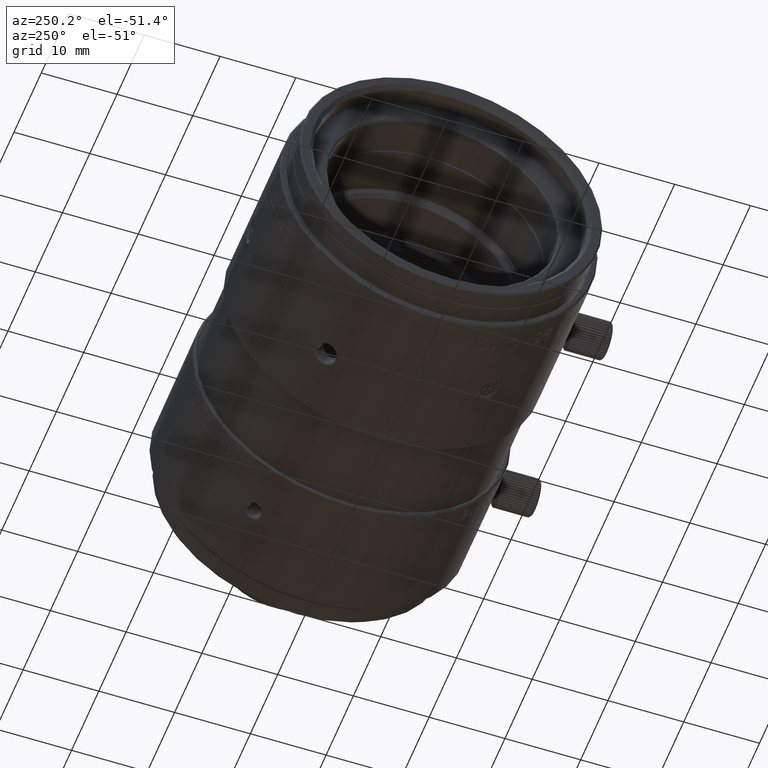
[diagram: clean part render]
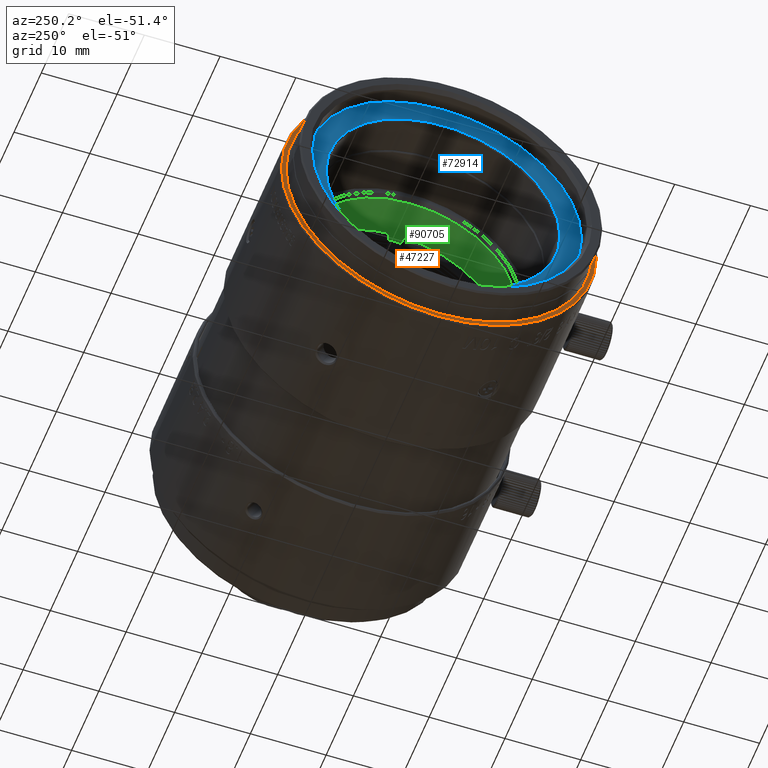
[diagram: same view with three faces highlighted in distinct colors, each labeled with its STEP entity id]
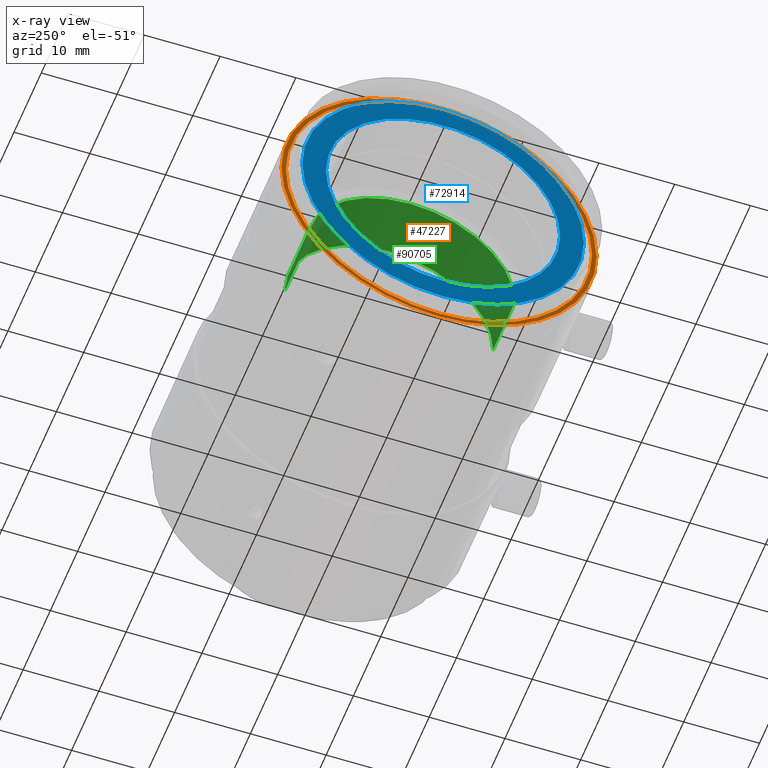
[diagram: x-ray of the same camera — body ghosted, the three highlighted faces saturated]
A machine part, auxiliary view with three faces highlighted in distinct colors.
The next image is the same camera in x-ray (body ghosted, the three faces saturated) — at least one of them is partly hidden behind the body in this view.
Their STEP definitions:

[orange] entity #47227 — the highlighted planar face has unit normal (-1, 0, 0).
#1217 = ORIENTED_EDGE ( 'NONE', *, *, #12666, .F. ) ;
#3645 = AXIS2_PLACEMENT_3D ( 'NONE', #37878, #85990, #16569 ) ;
#4309 = DIRECTION ( 'NONE',  ( 0.000000000000000000, 0.000000000000000000, -1.000000000000000000 ) ) ;
#5336 = AXIS2_PLACEMENT_3D ( 'NONE', #123563, #13353, #44048 ) ;
#7218 = CARTESIAN_POINT ( 'NONE',  ( -64.35099999999999909, -20.80000000000000071, 0.000000000000000000 ) ) ;
#7290 = EDGE_CURVE ( 'NONE', #39368, #22080, #118770, .T. ) ;
#12652 = DIRECTION ( 'NONE',  ( 0.000000000000000000, 0.000000000000000000, 1.000000000000000000 ) ) ;
#12666 = EDGE_CURVE ( 'NONE', #29081, #39368, #75760, .T. ) ;
#13353 = DIRECTION ( 'NONE',  ( 1.000000000000000000, 0.000000000000000000, 0.000000000000000000 ) ) ;
#14923 = ORIENTED_EDGE ( 'NONE', *, *, #113182, .F. ) ;
#16569 = DIRECTION ( 'NONE',  ( 0.000000000000000000, -1.000000000000000000, 0.000000000000000000 ) ) ;
#17142 = CARTESIAN_POINT ( 'NONE',  ( -64.35099999999999909, -20.19999999999999929, 0.000000000000000000 ) ) ;
#19173 = CARTESIAN_POINT ( 'NONE',  ( -64.35099999999999909, 0.000000000000000000, -20.80000000000021743 ) ) ;
#22080 = VERTEX_POINT ( 'NONE', #48786 ) ;
#22798 = AXIS2_PLACEMENT_3D ( 'NONE', #78585, #77939, #107383 ) ;
#22902 = AXIS2_PLACEMENT_3D ( 'NONE', #33322, #44659, #12652 ) ;
#24888 = CIRCLE ( 'NONE', #3645, 20.19999999999999929 ) ;
#25274 = FACE_OUTER_BOUND ( 'NONE', #42019, .T. ) ;
#29081 = VERTEX_POINT ( 'NONE', #7218 ) ;
#29148 = CIRCLE ( 'NONE', #22798, 20.19999999999999929 ) ;
#31832 = AXIS2_PLACEMENT_3D ( 'NONE', #70491, #111254, #114600 ) ;
#33322 = CARTESIAN_POINT ( 'NONE',  ( -64.35099999999999909, 0.000000000000000000, 0.000000000000000000 ) ) ;
#37878 = CARTESIAN_POINT ( 'NONE',  ( -64.35099999999999909, -1.429275949255999940E-12, 0.000000000000000000 ) ) ;
#39368 = VERTEX_POINT ( 'NONE', #19173 ) ;
#42019 = EDGE_LOOP ( 'NONE', ( #131085, #92817, #1217 ) ) ;
#44048 = DIRECTION ( 'NONE',  ( 0.000000000000000000, 0.000000000000000000, -1.000000000000000000 ) ) ;
#44659 = DIRECTION ( 'NONE',  ( -1.000000000000000000, 0.000000000000000000, 0.000000000000000000 ) ) ;
#45179 = CARTESIAN_POINT ( 'NONE',  ( -64.35099999999999909, -1.429275949255999940E-12, -20.19999999999959073 ) ) ;
#46946 = AXIS2_PLACEMENT_3D ( 'NONE', #72752, #54059, #74102 ) ;
#47227 = ADVANCED_FACE ( 'NONE', ( #25274, #84064 ), #94768, .T. ) ;
#48364 = AXIS2_PLACEMENT_3D ( 'NONE', #114546, #95784, #4309 ) ;
#48786 = CARTESIAN_POINT ( 'NONE',  ( -64.35099999999999909, 20.80000000000000071, 0.000000000000000000 ) ) ;
#50894 = ORIENTED_EDGE ( 'NONE', *, *, #113171, .F. ) ;
#54059 = DIRECTION ( 'NONE',  ( 1.000000000000000000, 0.000000000000000000, 0.000000000000000000 ) ) ;
#66417 = EDGE_CURVE ( 'NONE', #105188, #102069, #89410, .T. ) ;
#68865 = VERTEX_POINT ( 'NONE', #83942 ) ;
#70491 = CARTESIAN_POINT ( 'NONE',  ( -64.35099999999999909, -1.429275949255999940E-12, 4.043144115267999903E-13 ) ) ;
#72752 = CARTESIAN_POINT ( 'NONE',  ( -64.35099999999999909, 0.000000000000000000, 0.000000000000000000 ) ) ;
#74102 = DIRECTION ( 'NONE',  ( 0.000000000000000000, 0.000000000000000000, 1.000000000000000000 ) ) ;
#75760 = CIRCLE ( 'NONE', #5336, 20.80000000000000071 ) ;
#77939 = DIRECTION ( 'NONE',  ( -1.000000000000000000, 0.000000000000000000, 0.000000000000000000 ) ) ;
#78585 = CARTESIAN_POINT ( 'NONE',  ( -64.35099999999999909, -1.429275949255999940E-12, 4.043144115267999903E-13 ) ) ;
#83942 = CARTESIAN_POINT ( 'NONE',  ( -64.35099999999999909, 20.19999999999999929, 5.151339402132000470E-10 ) ) ;
#84064 = FACE_BOUND ( 'NONE', #122518, .T. ) ;
#85990 = DIRECTION ( 'NONE',  ( -1.000000000000000000, 0.000000000000000000, 0.000000000000000000 ) ) ;
#89410 = CIRCLE ( 'NONE', #31832, 20.19999999999999929 ) ;
#92817 = ORIENTED_EDGE ( 'NONE', *, *, #7290, .F. ) ;
#94768 = PLANE ( 'NONE',  #22902 ) ;
#95784 = DIRECTION ( 'NONE',  ( 1.000000000000000000, 0.000000000000000000, 0.000000000000000000 ) ) ;
#96197 = EDGE_CURVE ( 'NONE', #22080, #29081, #102334, .T. ) ;
#102069 = VERTEX_POINT ( 'NONE', #17142 ) ;
#102334 = CIRCLE ( 'NONE', #46946, 20.80000000000000071 ) ;
#105188 = VERTEX_POINT ( 'NONE', #45179 ) ;
#107383 = DIRECTION ( 'NONE',  ( 0.000000000000000000, 1.000000000000000000, -1.995433222849000087E-14 ) ) ;
#111254 = DIRECTION ( 'NONE',  ( -1.000000000000000000, 0.000000000000000000, 0.000000000000000000 ) ) ;
#113171 = EDGE_CURVE ( 'NONE', #102069, #68865, #24888, .T. ) ;
#113182 = EDGE_CURVE ( 'NONE', #68865, #105188, #29148, .T. ) ;
#114546 = CARTESIAN_POINT ( 'NONE',  ( -64.35099999999999909, 0.000000000000000000, -2.174825562225000157E-13 ) ) ;
#114600 = DIRECTION ( 'NONE',  ( 0.000000000000000000, 1.000000000000000000, -1.995433222849000087E-14 ) ) ;
#118770 = CIRCLE ( 'NONE', #48364, 20.80000000000000071 ) ;
#122518 = EDGE_LOOP ( 'NONE', ( #14923, #50894, #129840 ) ) ;
#123563 = CARTESIAN_POINT ( 'NONE',  ( -64.35099999999999909, 0.000000000000000000, -2.174825562225000157E-13 ) ) ;
#129840 = ORIENTED_EDGE ( 'NONE', *, *, #66417, .F. ) ;
#131085 = ORIENTED_EDGE ( 'NONE', *, *, #96197, .F. ) ;

[blue] entity #72914 — the highlighted planar face has unit normal (1, 0, 0).
#1939 = ORIENTED_EDGE ( 'NONE', *, *, #54743, .F. ) ;
#3024 = DIRECTION ( 'NONE',  ( 0.000000000000000000, 1.000000000000000000, -1.235711021613000059E-13 ) ) ;
#4971 = DIRECTION ( 'NONE',  ( 1.000000000000000000, 0.000000000000000000, 0.000000000000000000 ) ) ;
#5054 = DIRECTION ( 'NONE',  ( 1.000000000000000000, 0.000000000000000000, 0.000000000000000000 ) ) ;
#5128 = DIRECTION ( 'NONE',  ( 0.000000000000000000, -1.000000000000000000, 0.000000000000000000 ) ) ;
#6620 = VERTEX_POINT ( 'NONE', #22176 ) ;
#8041 = CARTESIAN_POINT ( 'NONE',  ( -60.65099999999999625, 18.59999999999999787, 0.000000000000000000 ) ) ;
#14053 = AXIS2_PLACEMENT_3D ( 'NONE', #127853, #4971, #64412 ) ;
#14917 = VERTEX_POINT ( 'NONE', #26134 ) ;
#19260 = CARTESIAN_POINT ( 'NONE',  ( -60.65099999999999625, 0.000000000000000000, 0.000000000000000000 ) ) ;
#22176 = CARTESIAN_POINT ( 'NONE',  ( -60.65099999999999625, -15.45000000000000107, 1.909173528393000005E-12 ) ) ;
#23695 = DIRECTION ( 'NONE',  ( 0.000000000000000000, 1.000000000000000000, -1.235711021613000059E-13 ) ) ;
#24426 = DIRECTION ( 'NONE',  ( 0.000000000000000000, 1.000000000000000000, 0.000000000000000000 ) ) ;
#24437 = DIRECTION ( 'NONE',  ( -1.000000000000000000, 0.000000000000000000, 0.000000000000000000 ) ) ;
#25082 = CARTESIAN_POINT ( 'NONE',  ( -60.65099999999999625, -2.735589532675999994E-13, 0.000000000000000000 ) ) ;
#25841 = AXIS2_PLACEMENT_3D ( 'NONE', #113961, #5054, #24426 ) ;
#26134 = CARTESIAN_POINT ( 'NONE',  ( -60.65099999999999625, 0.000000000000000000, -15.44999999999996732 ) ) ;
#31695 = DIRECTION ( 'NONE',  ( -1.000000000000000000, 0.000000000000000000, 0.000000000000000000 ) ) ;
#35106 = DIRECTION ( 'NONE',  ( 0.000000000000000000, -1.000000000000000000, 1.235711021613000059E-13 ) ) ;
#41880 = EDGE_CURVE ( 'NONE', #103178, #96144, #111834, .T. ) ;
#41988 = ORIENTED_EDGE ( 'NONE', *, *, #55865, .F. ) ;
#44210 = ORIENTED_EDGE ( 'NONE', *, *, #41880, .F. ) ;
#54260 = AXIS2_PLACEMENT_3D ( 'NONE', #77836, #57791, #5128 ) ;
#54743 = EDGE_CURVE ( 'NONE', #14917, #6620, #127771, .T. ) ;
#55180 = AXIS2_PLACEMENT_3D ( 'NONE', #105170, #31695, #23695 ) ;
#55865 = EDGE_CURVE ( 'NONE', #6620, #130368, #82999, .T. ) ;
#56922 = EDGE_LOOP ( 'NONE', ( #83712, #41988, #1939 ) ) ;
#57791 = DIRECTION ( 'NONE',  ( 1.000000000000000000, 0.000000000000000000, 0.000000000000000000 ) ) ;
#64412 = DIRECTION ( 'NONE',  ( 0.000000000000000000, 1.000000000000000000, 0.000000000000000000 ) ) ;
#65750 = CIRCLE ( 'NONE', #97782, 15.45000000000000107 ) ;
#70188 = CARTESIAN_POINT ( 'NONE',  ( -60.65099999999999625, 15.45000000000000107, -6.203739767839000092E-10 ) ) ;
#72138 = CARTESIAN_POINT ( 'NONE',  ( -60.65099999999999625, -18.59999999999999787, 0.000000000000000000 ) ) ;
#72914 = ADVANCED_FACE ( 'NONE', ( #96528, #86489 ), #73182, .F. ) ;
#73182 = PLANE ( 'NONE',  #25841 ) ;
#77836 = CARTESIAN_POINT ( 'NONE',  ( -60.65099999999999625, 0.000000000000000000, 0.000000000000000000 ) ) ;
#82999 = CIRCLE ( 'NONE', #117202, 15.45000000000000107 ) ;
#83550 = EDGE_CURVE ( 'NONE', #96144, #103178, #101418, .T. ) ;
#83712 = ORIENTED_EDGE ( 'NONE', *, *, #92168, .F. ) ;
#86418 = ORIENTED_EDGE ( 'NONE', *, *, #83550, .F. ) ;
#86489 = FACE_BOUND ( 'NONE', #56922, .T. ) ;
#88160 = EDGE_LOOP ( 'NONE', ( #86418, #44210 ) ) ;
#92168 = EDGE_CURVE ( 'NONE', #130368, #14917, #65750, .T. ) ;
#96144 = VERTEX_POINT ( 'NONE', #8041 ) ;
#96528 = FACE_OUTER_BOUND ( 'NONE', #88160, .T. ) ;
#97782 = AXIS2_PLACEMENT_3D ( 'NONE', #19260, #114582, #3024 ) ;
#101418 = CIRCLE ( 'NONE', #14053, 18.59999999999999787 ) ;
#103178 = VERTEX_POINT ( 'NONE', #72138 ) ;
#105170 = CARTESIAN_POINT ( 'NONE',  ( -60.65099999999999625, 0.000000000000000000, 0.000000000000000000 ) ) ;
#111834 = CIRCLE ( 'NONE', #54260, 18.59999999999999787 ) ;
#113961 = CARTESIAN_POINT ( 'NONE',  ( -60.65099999999999625, 0.000000000000000000, 0.000000000000000000 ) ) ;
#114582 = DIRECTION ( 'NONE',  ( -1.000000000000000000, 0.000000000000000000, 0.000000000000000000 ) ) ;
#117202 = AXIS2_PLACEMENT_3D ( 'NONE', #25082, #24437, #35106 ) ;
#127771 = CIRCLE ( 'NONE', #55180, 15.45000000000000107 ) ;
#127853 = CARTESIAN_POINT ( 'NONE',  ( -60.65099999999999625, 0.000000000000000000, 0.000000000000000000 ) ) ;
#130368 = VERTEX_POINT ( 'NONE', #70188 ) ;

[green] entity #90705 — the highlighted cylindrical surface (partial cylindrical patch) has radius 13.75 mm, axis along (-1, 0, 0).
#27390 = EDGE_CURVE ( 'NONE', #117180, #75966, #107623, .T. ) ;
#30694 = AXIS2_PLACEMENT_3D ( 'NONE', #86922, #119649, #58143 ) ;
#31728 = CARTESIAN_POINT ( 'NONE',  ( 3.350000000000000089, -13.75000000000000000, 0.000000000000000000 ) ) ;
#34771 = LINE ( 'NONE', #55470, #121473 ) ;
#35750 = AXIS2_PLACEMENT_3D ( 'NONE', #90556, #78546, #81180 ) ;
#41723 = CYLINDRICAL_SURFACE ( 'NONE', #59132, 13.75000000000000000 ) ;
#43166 = CARTESIAN_POINT ( 'NONE',  ( 3.350000000000000089, 13.75000000000000000, 0.000000000000000000 ) ) ;
#45467 = DIRECTION ( 'NONE',  ( -1.000000000000000000, 2.890717341135999866E-14, 3.766425488463000152E-11 ) ) ;
#50512 = ORIENTED_EDGE ( 'NONE', *, *, #119951, .T. ) ;
#52083 = EDGE_CURVE ( 'NONE', #94895, #75966, #125402, .T. ) ;
#52379 = CARTESIAN_POINT ( 'NONE',  ( 37.00999999999999801, 0.000000000000000000, 0.000000000000000000 ) ) ;
#55470 = CARTESIAN_POINT ( 'NONE',  ( 3.350000000000000089, -13.75000000000000000, 2.015939149759000057E-10 ) ) ;
#58143 = DIRECTION ( 'NONE',  ( 0.000000000000000000, 1.000000000000000000, 0.000000000000000000 ) ) ;
#59132 = AXIS2_PLACEMENT_3D ( 'NONE', #52379, #91146, #61739 ) ;
#59653 = ORIENTED_EDGE ( 'NONE', *, *, #52083, .T. ) ;
#61739 = DIRECTION ( 'NONE',  ( 0.000000000000000000, 1.000000000000000000, 0.000000000000000000 ) ) ;
#66217 = DIRECTION ( 'NONE',  ( -1.000000000000000000, -3.199648965378999885E-14, -4.392491704181999327E-11 ) ) ;
#67521 = CARTESIAN_POINT ( 'NONE',  ( 3.350000000000000089, 13.75000000000000000, 0.000000000000000000 ) ) ;
#72201 = ORIENTED_EDGE ( 'NONE', *, *, #27390, .F. ) ;
#75855 = VERTEX_POINT ( 'NONE', #31728 ) ;
#75966 = VERTEX_POINT ( 'NONE', #93839 ) ;
#78546 = DIRECTION ( 'NONE',  ( -1.000000000000000000, 0.000000000000000000, 0.000000000000000000 ) ) ;
#81180 = DIRECTION ( 'NONE',  ( 0.000000000000000000, 0.000000000000000000, 1.000000000000000000 ) ) ;
#81961 = ORIENTED_EDGE ( 'NONE', *, *, #108631, .T. ) ;
#86190 = VECTOR ( 'NONE', #66217, 1000.000000000000000 ) ;
#86922 = CARTESIAN_POINT ( 'NONE',  ( 3.350000000000000089, 0.000000000000000000, 0.000000000000000000 ) ) ;
#90556 = CARTESIAN_POINT ( 'NONE',  ( -4.700000000001000267, -3.558898810867999948E-14, 0.000000000000000000 ) ) ;
#90705 = ADVANCED_FACE ( 'NONE', ( #101173 ), #41723, .F. ) ;
#91146 = DIRECTION ( 'NONE',  ( -1.000000000000000000, 0.000000000000000000, 0.000000000000000000 ) ) ;
#93839 = CARTESIAN_POINT ( 'NONE',  ( -4.700000000001000267, 13.75000000000000000, 0.000000000000000000 ) ) ;
#94895 = VERTEX_POINT ( 'NONE', #120570 ) ;
#101173 = FACE_OUTER_BOUND ( 'NONE', #109338, .T. ) ;
#107623 = LINE ( 'NONE', #67521, #86190 ) ;
#108631 = EDGE_CURVE ( 'NONE', #117180, #75855, #118269, .T. ) ;
#109338 = EDGE_LOOP ( 'NONE', ( #72201, #81961, #50512, #59653 ) ) ;
#117180 = VERTEX_POINT ( 'NONE', #43166 ) ;
#118269 = CIRCLE ( 'NONE', #30694, 13.75000000000000000 ) ;
#119649 = DIRECTION ( 'NONE',  ( 1.000000000000000000, 0.000000000000000000, 0.000000000000000000 ) ) ;
#119951 = EDGE_CURVE ( 'NONE', #75855, #94895, #34771, .T. ) ;
#120570 = CARTESIAN_POINT ( 'NONE',  ( -4.700000000000000178, -13.75000000000000000, 3.023912523324999825E-10 ) ) ;
#121473 = VECTOR ( 'NONE', #45467, 1000.000000000000000 ) ;
#125402 = CIRCLE ( 'NONE', #35750, 13.75000000000000000 ) ;